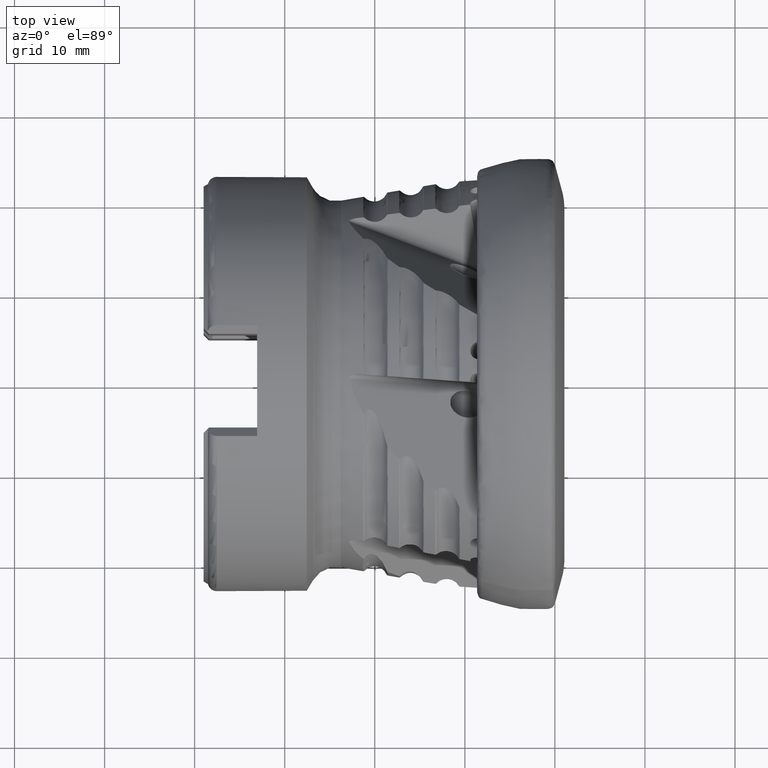
[diagram: clean part render]
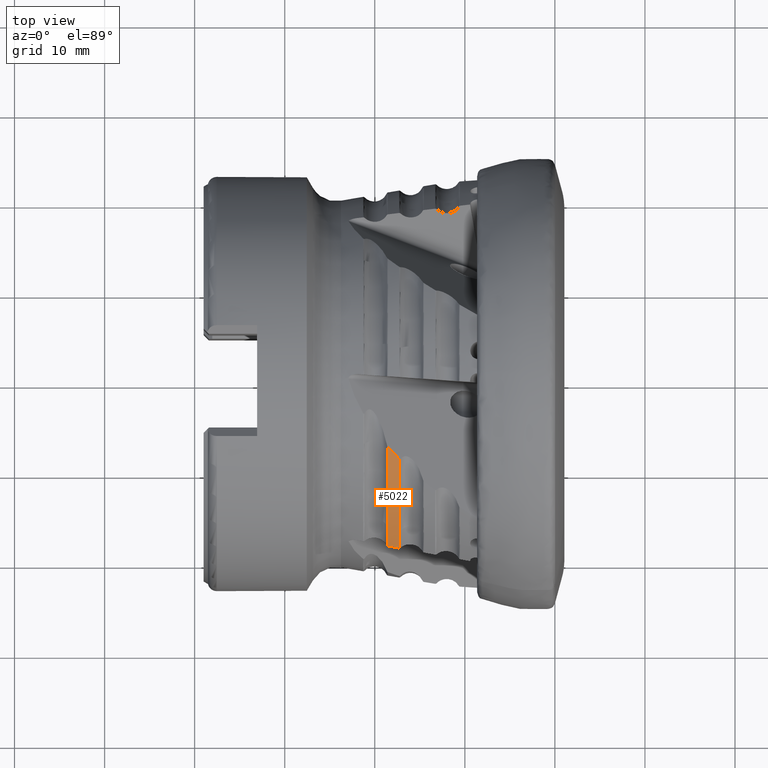
[diagram: same view with one face highlighted and labeled with its STEP entity id]
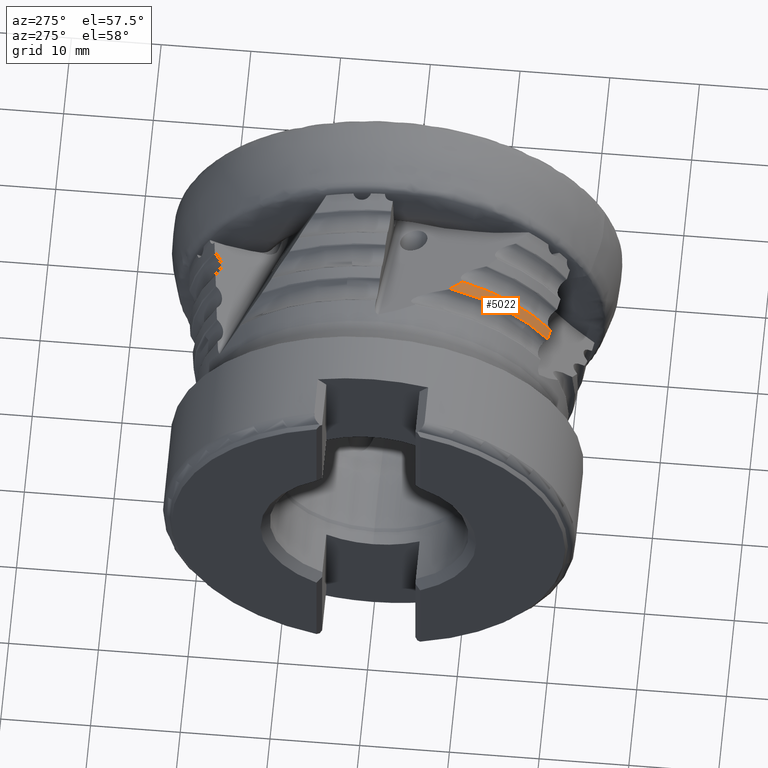
[diagram: same view with one face highlighted and labeled with its STEP entity id]
A machine part, top view. The second image highlights one B-rep face of the part: STEP entity #5022.
A second angle (auxiliary view) of the same face is appended — the face is thin or edge-on in the first view.
In plain terms, the highlighted conical surface has half-angle 9.923 deg.
Its self-contained STEP definition (entity closure, byte-faithful):
#68 = EDGE_CURVE ( 'NONE', #507, #4661, #7425, .T. ) ;
#299 = ORIENTED_EDGE ( 'NONE', *, *, #6855, .T. ) ;
#300 = ORIENTED_EDGE ( 'NONE', *, *, #68, .F. ) ;
#507 = VERTEX_POINT ( 'NONE', #11715 ) ;
#842 = DIRECTION ( 'NONE',  ( -1.000000000000000000, 0.0000000000000000000, 0.0000000000000000000 ) ) ;
#1360 = DIRECTION ( 'NONE',  ( 1.000000000000000000, -0.0000000000000000000, -0.0000000000000000000 ) ) ;
#1568 = CARTESIAN_POINT ( 'NONE',  ( -8.049999999999997200, 0.0000000000000000000, 0.0000000000000000000 ) ) ;
#1778 = CARTESIAN_POINT ( 'NONE',  ( -17.30945949503737700, -8.624301726398693200, 19.68374301812591700 ) ) ;
#2246 = EDGE_CURVE ( 'NONE', #10742, #4661, #9531, .T. ) ;
#3262 = AXIS2_PLACEMENT_3D ( 'NONE', #1568, #7889, #8797 ) ;
#3510 = AXIS2_PLACEMENT_3D ( 'NONE', #6777, #1360, #7700 ) ;
#3563 = CARTESIAN_POINT ( 'NONE',  ( -17.71700449584379600, -18.32699694988527000, 11.08563161785717100 ) ) ;
#3764 = ORIENTED_EDGE ( 'NONE', *, *, #4541, .F. ) ;
#4384 = CARTESIAN_POINT ( 'NONE',  ( -17.73950061833628700, -8.197969587009035700, 19.78840405546045400 ) ) ;
#4541 = EDGE_CURVE ( 'NONE', #10742, #10438, #7315, .T. ) ;
#4566 = CARTESIAN_POINT ( 'NONE',  ( -18.53206238809905300, -18.17389566494783500, 11.06305001409767500 ) ) ;
#4614 = CARTESIAN_POINT ( 'NONE',  ( -18.53206238809905000, -7.340958144638595000, 19.96977447978570900 ) ) ;
#4661 = VERTEX_POINT ( 'NONE', #9132 ) ;
#5022 = ADVANCED_FACE ( 'NONE', ( #6679 ), #8256, .T. ) ;
#5195 = CARTESIAN_POINT ( 'NONE',  ( -18.14708823936879900, -7.770132420562427800, 19.88376035116364800 ) ) ;
#5519 = AXIS2_PLACEMENT_3D ( 'NONE', #6281, #842, #7176 ) ;
#5775 = CARTESIAN_POINT ( 'NONE',  ( -17.30945949503738000, -18.40346893690138000, 11.09687571166273300 ) ) ;
#6126 = CIRCLE ( 'NONE', #3510, 21.27631451297043700 ) ;
#6258 = CARTESIAN_POINT ( 'NONE',  ( -18.53206238809905300, -18.17389566494783500, 11.06305001409767500 ) ) ;
#6281 = CARTESIAN_POINT ( 'NONE',  ( -17.30945949503738000, 0.0000000000000000000, 0.0000000000000000000 ) ) ;
#6679 = FACE_OUTER_BOUND ( 'NONE', #11745, .T. ) ;
#6777 = CARTESIAN_POINT ( 'NONE',  ( -18.53206238809905300, 0.0000000000000000000, 0.0000000000000000000 ) ) ;
#6855 = EDGE_CURVE ( 'NONE', #507, #10438, #6126, .T. ) ;
#7176 = DIRECTION ( 'NONE',  ( 0.0000000000000000000, 1.776356839400250500E-015, -1.000000000000000000 ) ) ;
#7315 = B_SPLINE_CURVE_WITH_KNOTS ( 'NONE', 3,
 ( #11654, #3563, #9850, #6258 ),
 .UNSPECIFIED., .F., .F.,
 ( 4, 4 ),
 ( 2.035652386577862500E-007, 0.001244633514707086000 ),
 .UNSPECIFIED. ) ;
#7425 =( BOUNDED_CURVE ( )  B_SPLINE_CURVE ( 3, ( #4614, #5195, #4384, #1778 ),
 .UNSPECIFIED., .F., .T. ) 
 B_SPLINE_CURVE_WITH_KNOTS ( ( 4, 4 ),
 ( 3.465855367682347100, 3.505478237395638400 ),
 .UNSPECIFIED. ) 
 CURVE ( )  GEOMETRIC_REPRESENTATION_ITEM ( )  RATIONAL_B_SPLINE_CURVE ( ( 1.000000000000000000, 0.9998691732954375600, 0.9998691732954375600, 1.000000000000000000 ) ) 
 REPRESENTATION_ITEM ( '' )  );
#7700 = DIRECTION ( 'NONE',  ( 0.0000000000000000000, 0.0000000000000000000, -1.000000000000000000 ) ) ;
#7889 = DIRECTION ( 'NONE',  ( 1.000000000000000000, -0.0000000000000000000, -0.0000000000000000000 ) ) ;
#8256 = CONICAL_SURFACE ( 'NONE', #3262, 23.10999999999999900, 0.1731831436759517800 ) ;
#8797 = DIRECTION ( 'NONE',  ( 0.0000000000000000000, 0.0000000000000000000, -1.000000000000000000 ) ) ;
#9132 = CARTESIAN_POINT ( 'NONE',  ( -17.30945949503737700, -8.624301726398693200, 19.68374301812591700 ) ) ;
#9531 = CIRCLE ( 'NONE', #5519, 21.49019123859962800 ) ;
#9599 = ORIENTED_EDGE ( 'NONE', *, *, #2246, .T. ) ;
#9850 = CARTESIAN_POINT ( 'NONE',  ( -18.12453891073062500, -18.25047305319532500, 11.07435669923237700 ) ) ;
#10438 = VERTEX_POINT ( 'NONE', #4566 ) ;
#10742 = VERTEX_POINT ( 'NONE', #5775 ) ;
#11654 = CARTESIAN_POINT ( 'NONE',  ( -17.30945949503738000, -18.40346893690138000, 11.09687571166273300 ) ) ;
#11715 = CARTESIAN_POINT ( 'NONE',  ( -18.53206238809905000, -7.340958144638595000, 19.96977447978570900 ) ) ;
#11745 = EDGE_LOOP ( 'NONE', ( #3764, #9599, #300, #299 ) ) ;